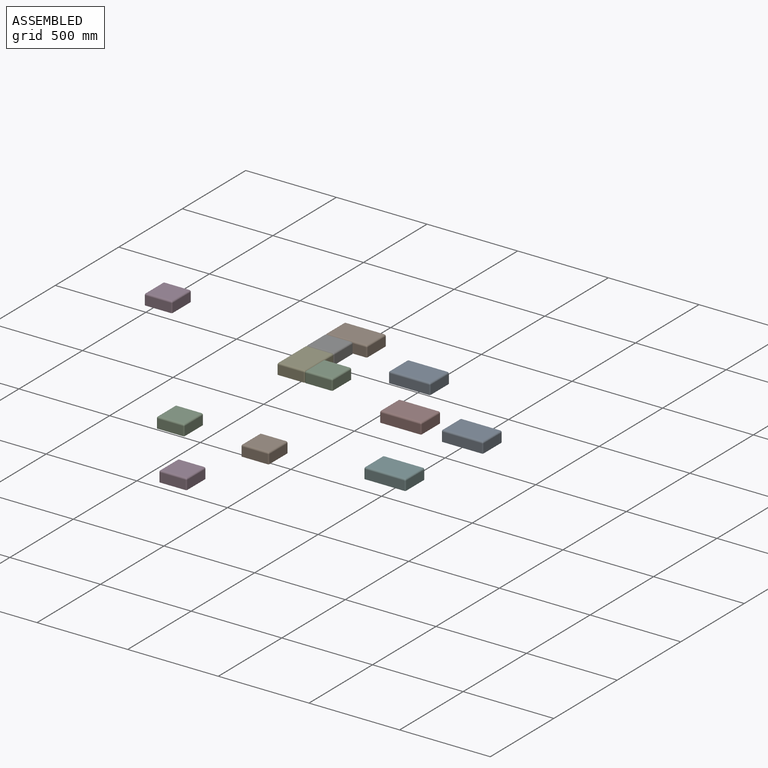
[diagram: assembled view]
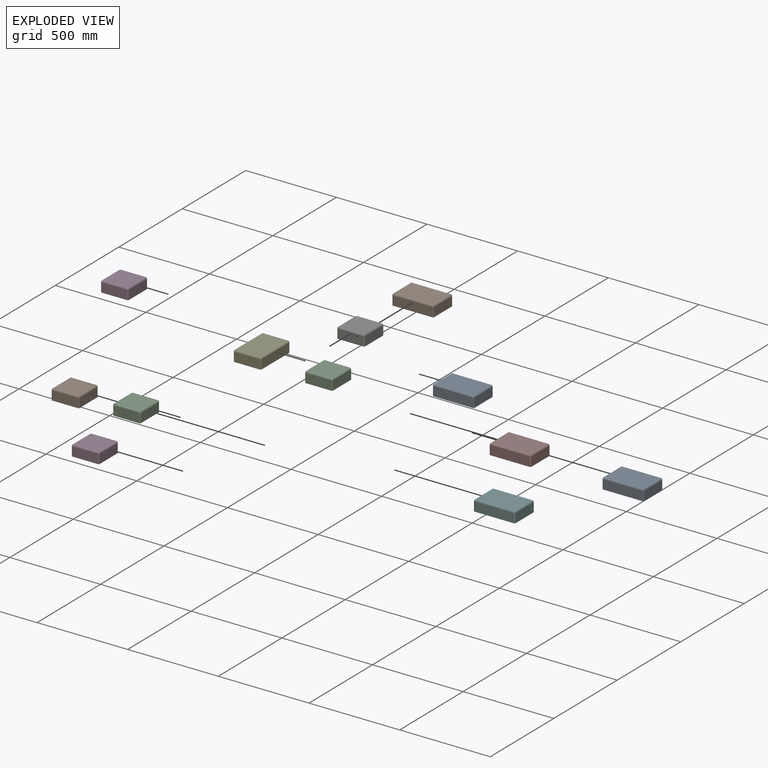
[diagram: exploded view]
GUIDED TOUR — MATED ASSEMBLY (Onshape document 7870813e908067b04411281b, AutoMate assembly 7870813e908067b04411281b_c33d60b8d94f83a59a60d879_aa1d32ee274c47b3429cdb9a_default)

This assembly has 12 components, labeled P0..P11 below (a component is one placed occurrence of a part; the same part can appear more than once), held together by 3 mates. A mate is a constraint between two components; its type names the relative motion it leaves free:
  FASTENED — locks the two components together rigidly (no relative motion).
Axis/direction vectors are unit vectors and 'through' points are millimeter coordinates, both in the assembly's world frame.

MATES
  1. FASTENED "Fastened 4": P1 <-> P6, direction (0.000, -1.000, 0.000) through (-69.85, 381.00, 0.00) mm
  2. FASTENED "Fastened 3": P10 <-> P4, direction (-1.000, 0.000, 0.000) through (76.20, 6.35, 0.00) mm
  3. FASTENED "Fastened 2": P6 <-> P4, direction (0.000, -1.000, 0.000) through (0.00, 228.60, 0.00) mm

ASSEMBLY ORDER
  1. P10 — the base component [order verified]
  2. P4 [order verified]
  3. P6 [order verified]
  4. P8 [order verified]
  5. P7 [order verified]
  6. P9 [order verified]
  7. P5 [order verified]
  8. P2 [order verified]
  9. P11 [order verified]
  10. P1 [order verified]
  11. P3 [order verified]
  12. P0 [order verified]
Order-tag legend:
  [order verified] — this step's position reverses a verified removal order: the component was checked to insert without passing through the ones already placed.

Of the 12 components, 12 carry the full construction recipe — the FeatureScript program that regenerates the part's solid from scratch; the rest are supplied as boundary geometry only.
Each toured component is shown spotlighted twice — in the assembled view, then in the exploded view, where a leader line traces a displaced component back to its assembled socket (saturated green if recipe-attached, orange if geometry-only; every other component desaturated gray) — followed by its recipe or geometry summary and the mates that hold it.
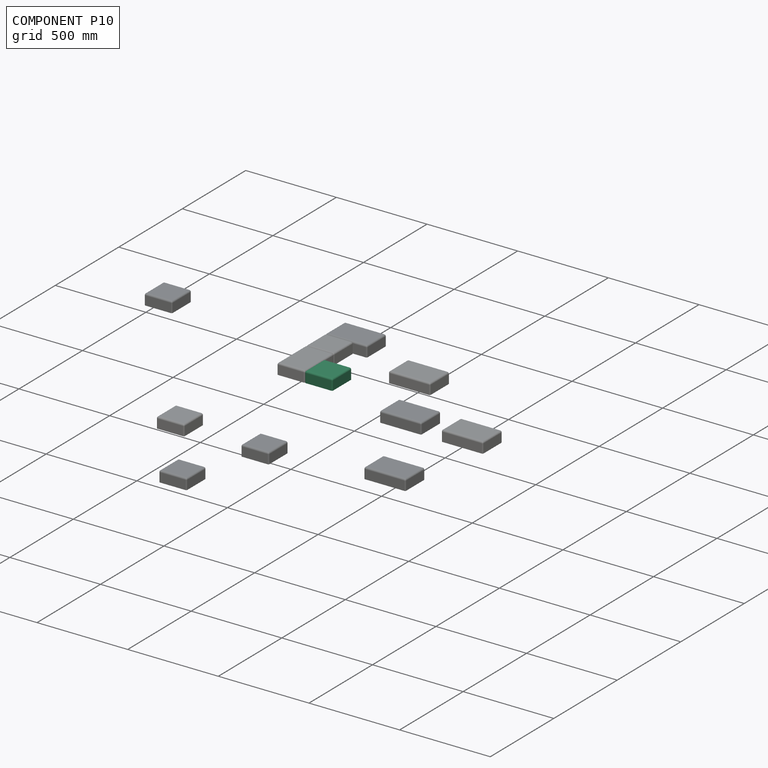
[diagram: component P10 — assembled]
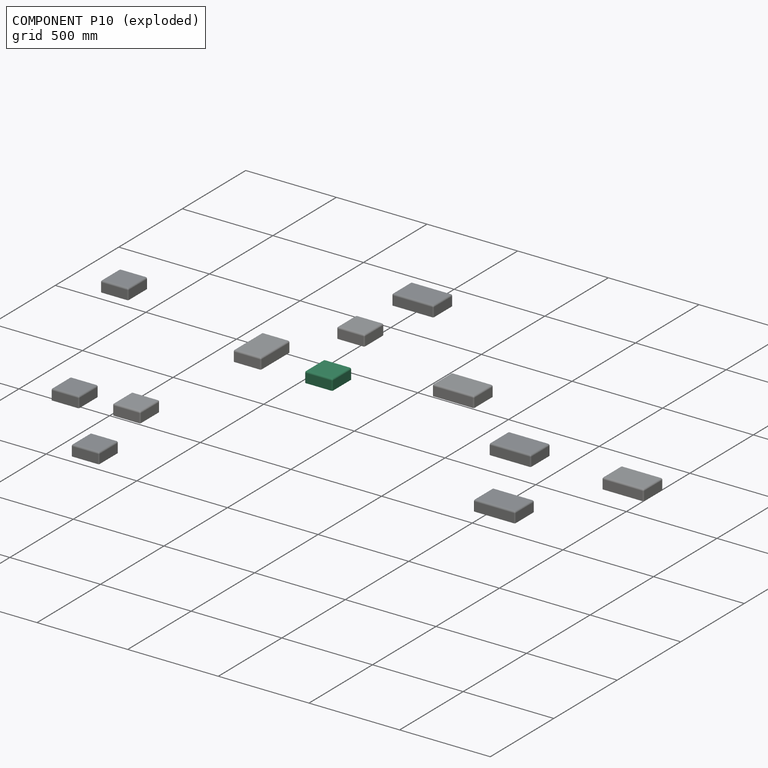
[diagram: component P10 — exploded]
COMPONENT P10 — same part as P2 (CADFS 00304210); its construction recipe is shown at P2.
Held by: FASTENED mate "Fastened 3" to P4.
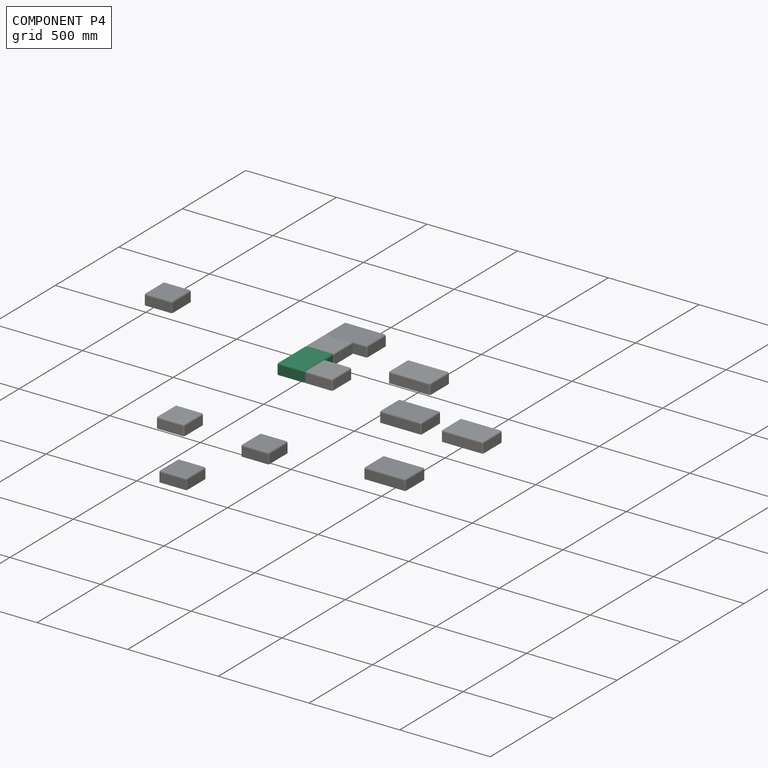
[diagram: component P4 — assembled]
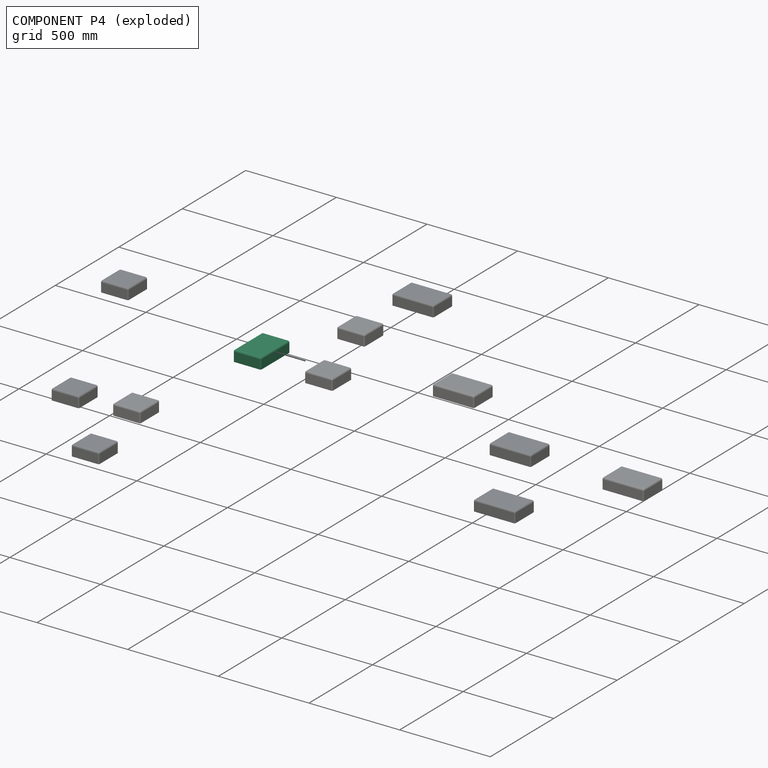
[diagram: component P4 — exploded]
COMPONENT P4 — same part as P0 (CADFS 00304209); its construction recipe is shown at P0.
Held by: FASTENED mate "Fastened 3" to P10; FASTENED mate "Fastened 2" to P6.
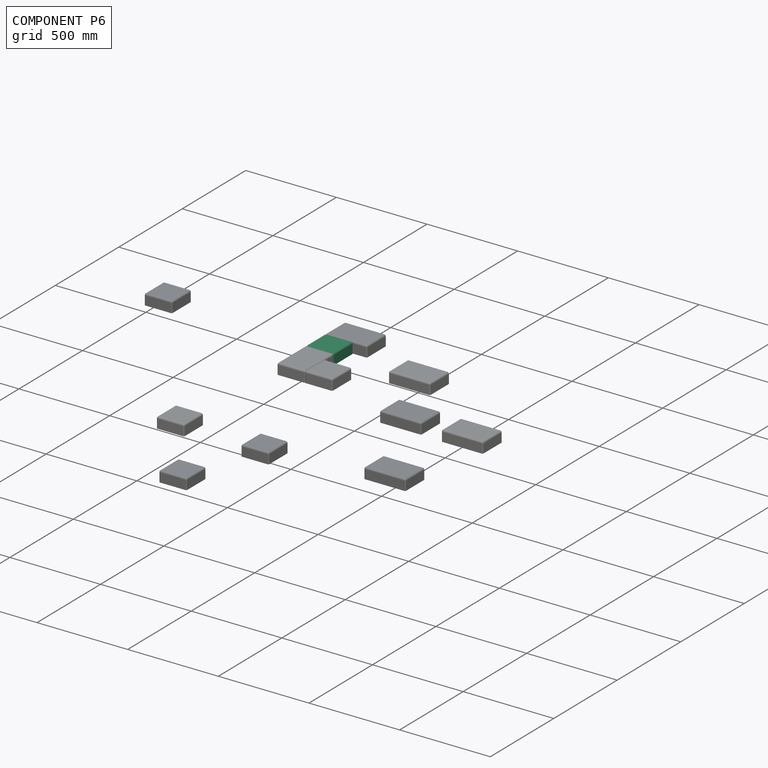
[diagram: component P6 — assembled]
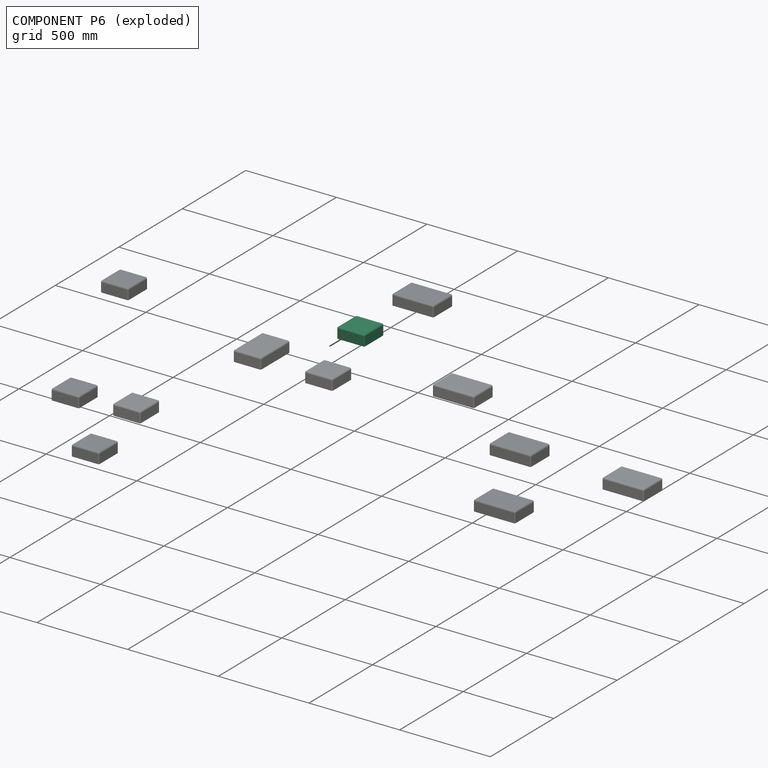
[diagram: component P6 — exploded]
COMPONENT P6 — same part as P2 (CADFS 00304210); its construction recipe is shown at P2.
Held by: FASTENED mate "Fastened 4" to P1; FASTENED mate "Fastened 2" to P4.
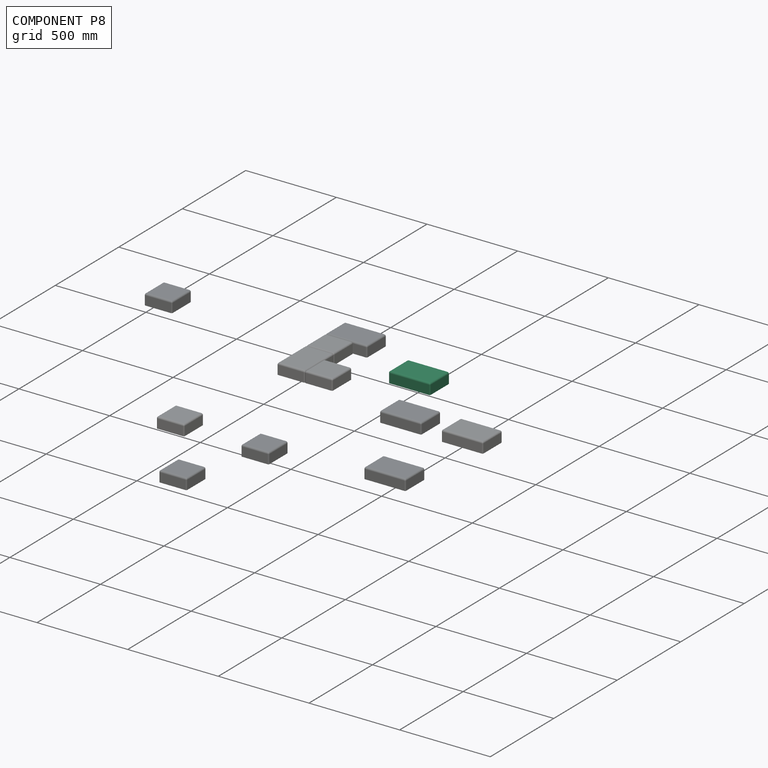
[diagram: component P8 — assembled]
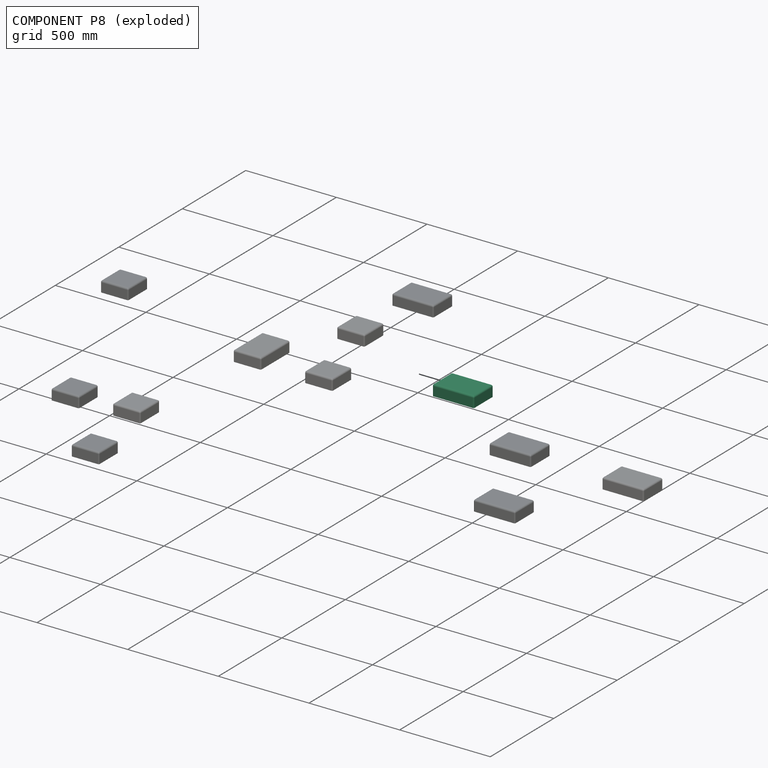
[diagram: component P8 — exploded]
COMPONENT P8 — same part as P0 (CADFS 00304209); its construction recipe is shown at P0.
Held by: no mates (free).
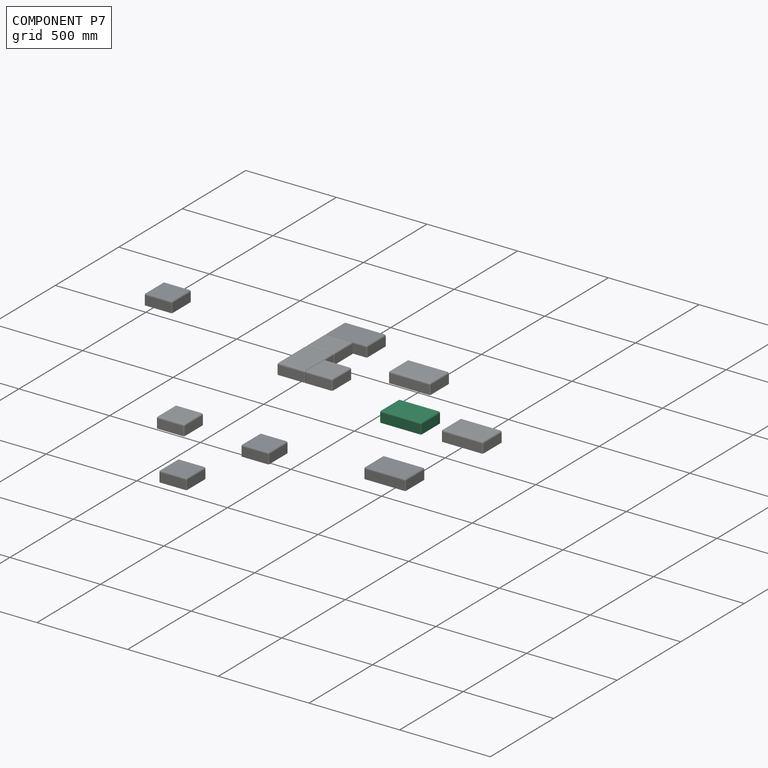
[diagram: component P7 — assembled]
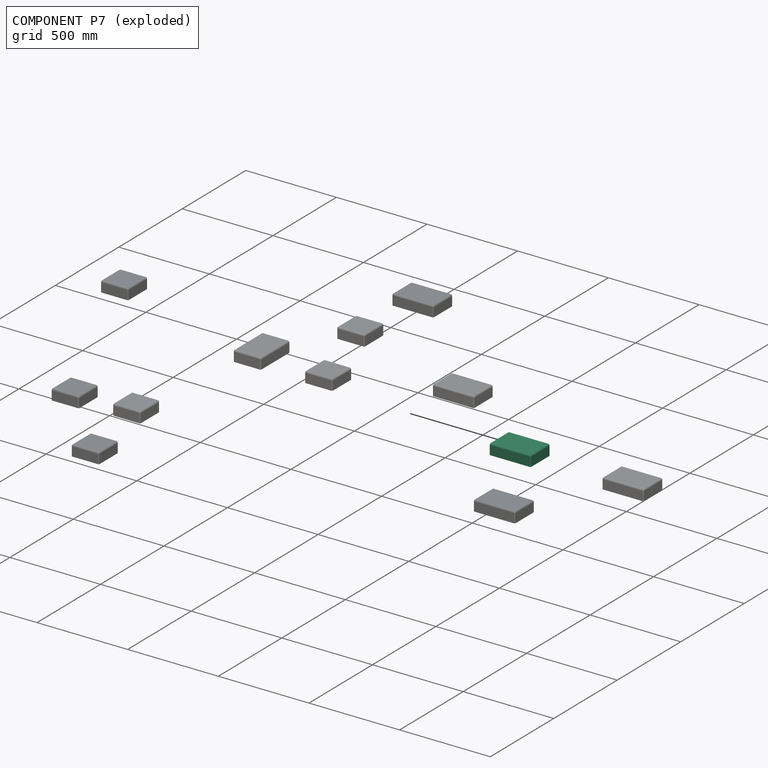
[diagram: component P7 — exploded]
COMPONENT P7 — same part as P0 (CADFS 00304209); its construction recipe is shown at P0.
Held by: no mates (free).
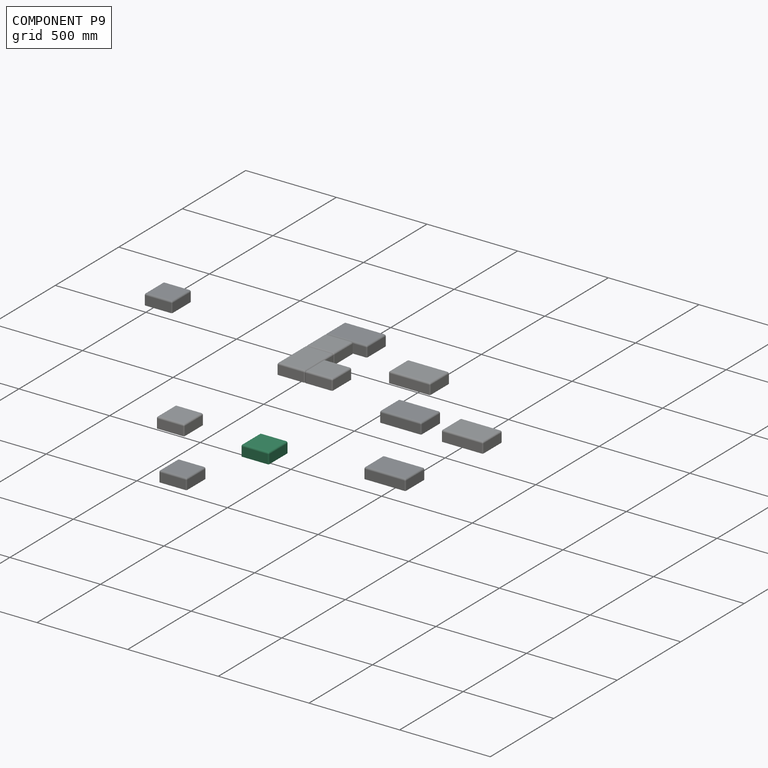
[diagram: component P9 — assembled]
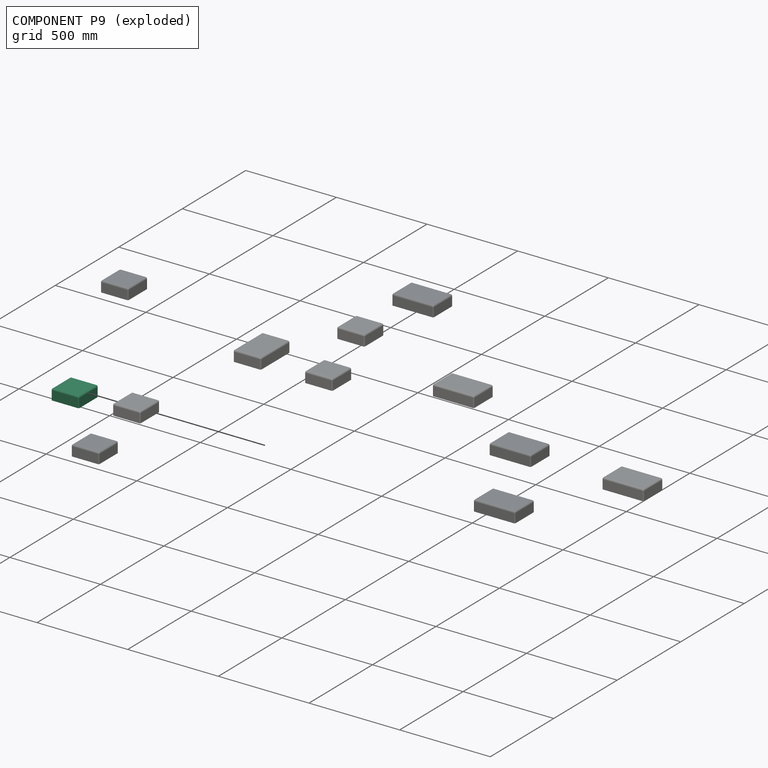
[diagram: component P9 — exploded]
COMPONENT P9 — same part as P2 (CADFS 00304210); its construction recipe is shown at P2.
Held by: no mates (free).
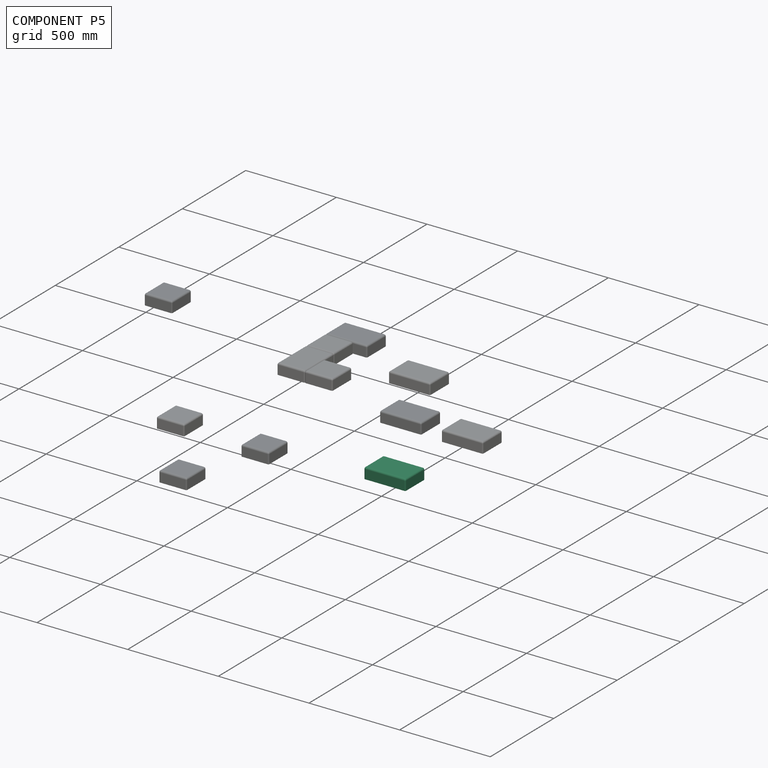
[diagram: component P5 — assembled]
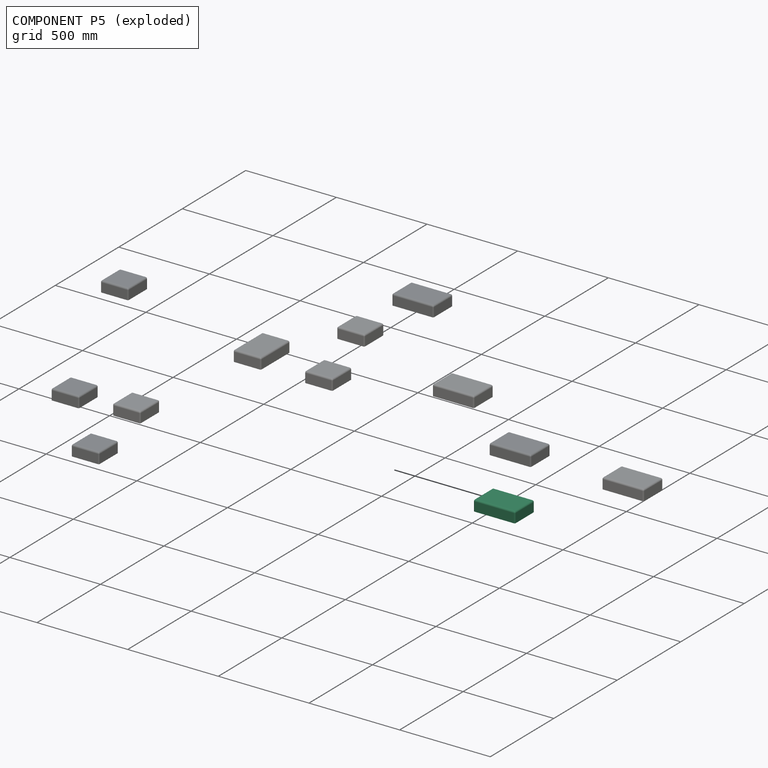
[diagram: component P5 — exploded]
COMPONENT P5 — same part as P0 (CADFS 00304209); its construction recipe is shown at P0.
Held by: no mates (free).
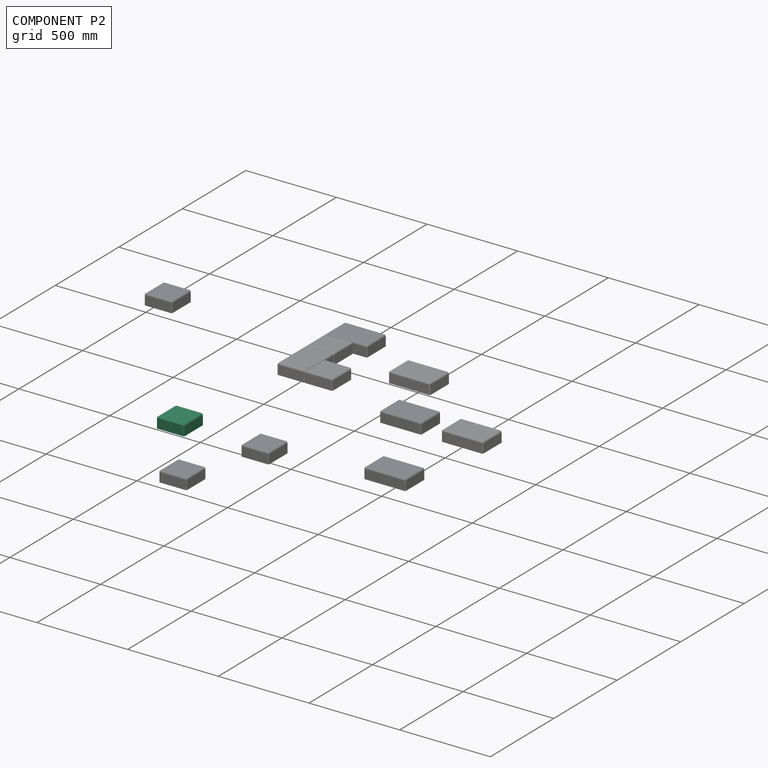
[diagram: component P2 — assembled]
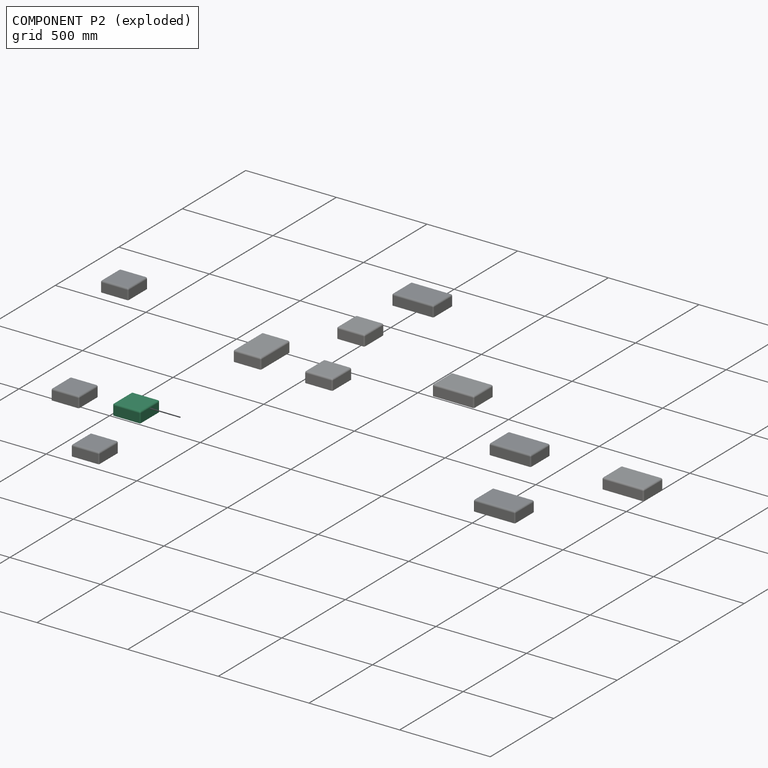
[diagram: component P2 — exploded]
COMPONENT P2 — recipe-attached (CADFS 00304210, mesh-verified: the recipe's output STEP matches this component's geometry to below the mesh-comparison resolution (tessellation chordal tolerance ~0.336 mm)).
Held by: no mates (free).
Construction recipe (FeatureScript — the CAD program that rebuilds this solid; sketch coordinates are in the units given by the * unit suffixes, e.g. mm):

FeatureScript 1540;
import(path : "onshape/std/geometry.fs", version : "1540.0");
import(path : "onshape/std/common.fs", version : "1540.0");
const mm = millimeter;
const VERTEX = EntityType.VERTEX;
const EDGE = EntityType.EDGE;
const FACE = EntityType.FACE;
const BODY = EntityType.BODY;
function v(x, y){return vector(x, y);}
function OD(order){return orderDisambiguation(order);}
function OSD(set){return originalSetDisambiguation(set);}
function TD(topology){return topologyDisambiguation(topology);}
function TDD(query){return trueDependencyDisambiguation(query);}
function sQuery(a, b, c) {return sketchEntityQuery(a, b, c);}

annotation { "Feature Type Name" : "Feature", "Feature Type Description" : "" }
export const myFeature = defineFeature(function(context is Context, id is Id, definition is map)
    precondition{}
    {
        {
            var Q0;
            Q0=qCreatedBy(makeId("Top.planeOp"),FACE);
            var sketch = newSketch(context, id + "F0", { "sketchPlane" : qUnion([Q0])});
            skLineSegment(sketch, "E0.bottom", {"start": v(6.35, 0) * mm, "end": v(146.05, 0) * mm});
            skLineSegment(sketch, "E0.top", {"start": v(6.35, 152.4) * mm, "end": v(146.05, 152.4) * mm});
            skLineSegment(sketch, "E0.left", {"start": v(0, 6.35) * mm, "end": v(0, 146.05) * mm});
            skLineSegment(sketch, "E0.right", {"start": v(152.4, 6.35) * mm, "end": v(152.4, 146.05) * mm});
            skPoint(sketch, "E1.visualSharp", {"position": v(0, 152.4) * mm});
            skArc(sketch, "E1.filletArc", {"start": v(6.35, 152.4) * mm, "mid": v(1.86, 150.54) * mm, "end": v(0, 146.05) * mm});
            skPoint(sketch, "E2.visualSharp", {"position": v(152.4, 152.4) * mm});
            skArc(sketch, "E2.filletArc", {"start": v(152.4, 146.05) * mm, "mid": v(150.54, 150.54) * mm, "end": v(146.05, 152.4) * mm});
            skPoint(sketch, "E3.visualSharp", {"position": v(152.4, 0) * mm});
            skArc(sketch, "E3.filletArc", {"start": v(146.05, 0) * mm, "mid": v(150.54, 1.86) * mm, "end": v(152.4, 6.35) * mm});
            skPoint(sketch, "E4.visualSharp", {"position": v(0, 0) * mm});
            skArc(sketch, "E4.filletArc", {"start": v(0, 6.35) * mm, "mid": v(1.86, 1.86) * mm, "end": v(6.35, 0) * mm});
            skSolve(sketch);
        }
        {
            var Q0;
            Q0=makeQuery(id+"F0.imprint","IMPRINT",FACE,{"disambiguationData":[TD([[makeQuery(id+"F0.imprint","IMPRINT",EDGE,{"derivedFrom":sQuery(id+"F0.wireOp",EDGE,"E0.bottom")}),1.0]])]});
            extrude(context, id + "F1", {"entities" : qUnion([Q0]), "depth" : 60 * mm});
        }
        {
            var Q0;
            Q0=makeQuery(id+"F1.opExtrude","CAP_EDGE",EDGE,{"disambiguationData":[OSD([sQuery(id+"F0.wireOp",EDGE,"E0.bottom")])],"isStart":false});
            fillet(context, id + "F2", {"entities" : qUnion([Q0]), "radius" : 9.52 * mm, "tangentPropagation" : true, "allowEdgeOverflow" : false});
        }
    });
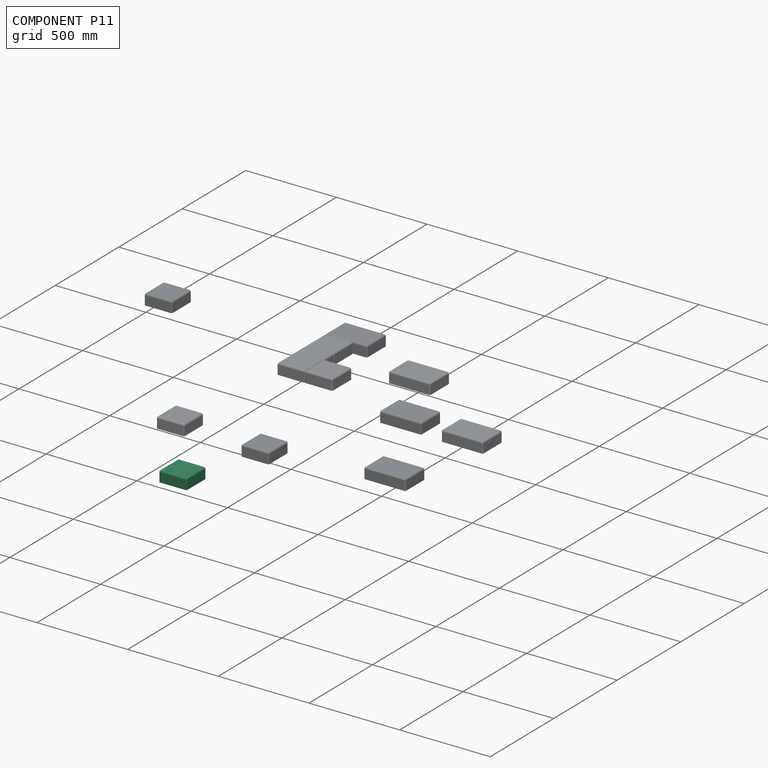
[diagram: component P11 — assembled]
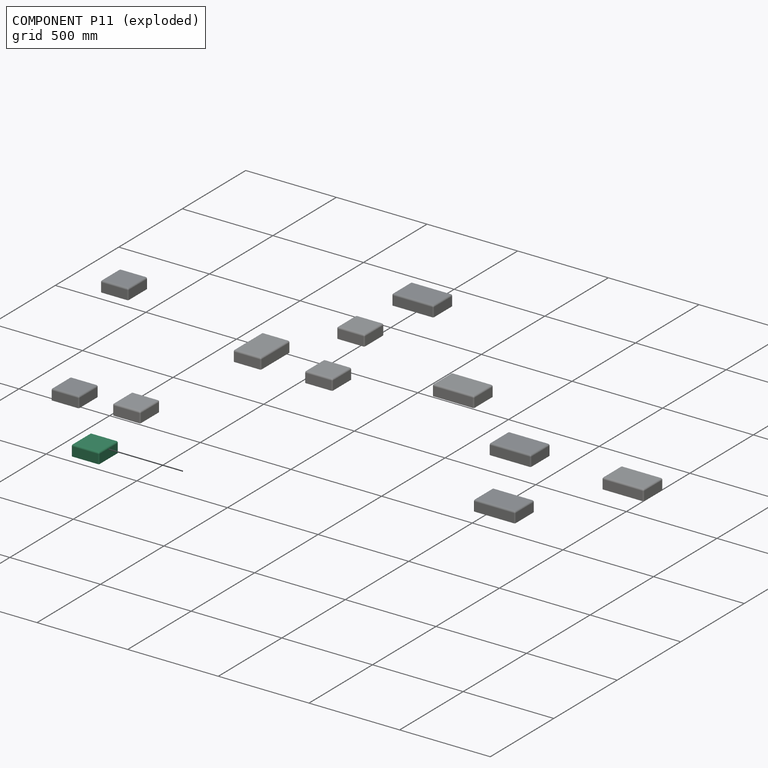
[diagram: component P11 — exploded]
COMPONENT P11 — same part as P2 (CADFS 00304210); its construction recipe is shown at P2.
Held by: no mates (free).
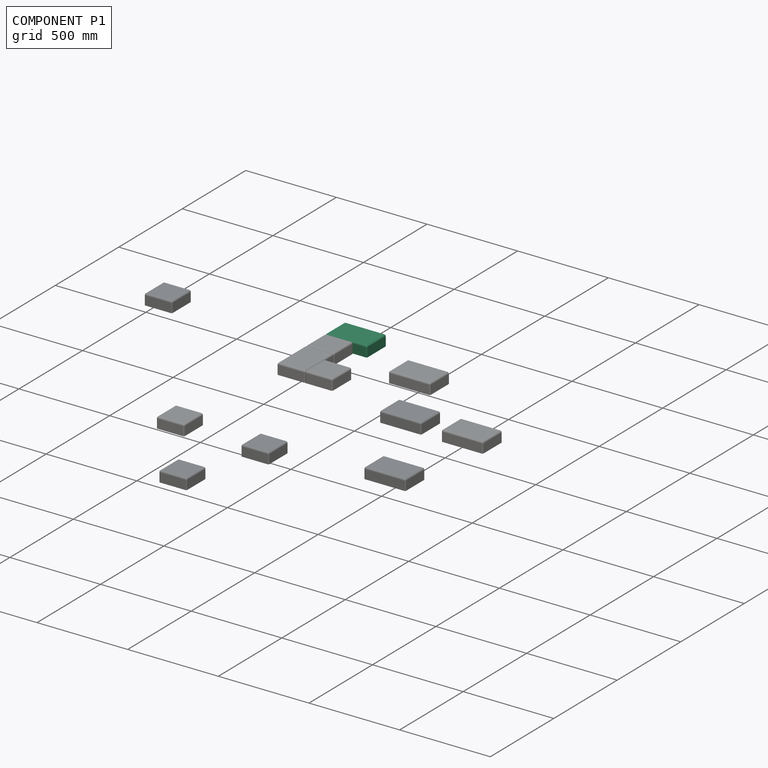
[diagram: component P1 — assembled]
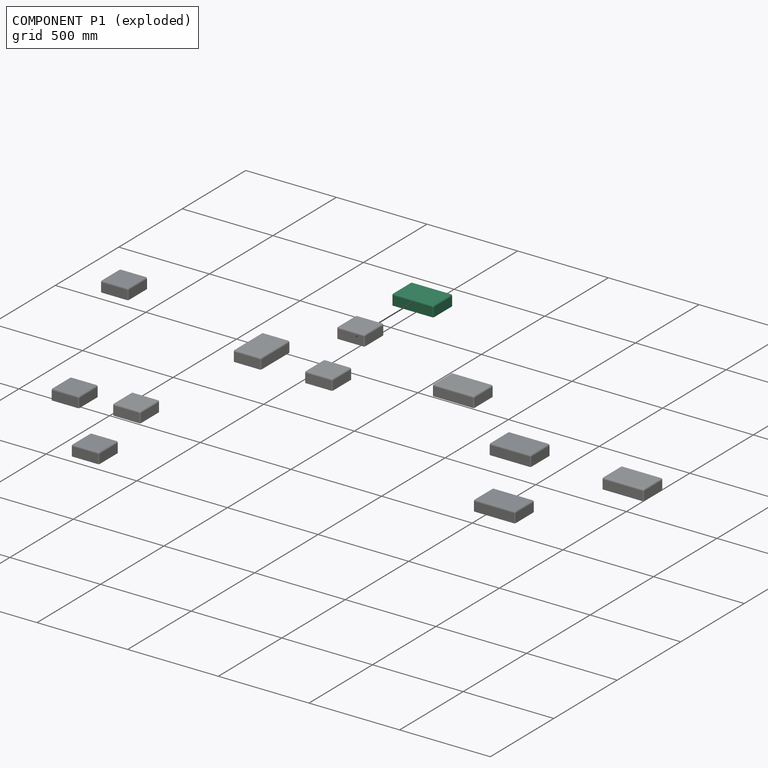
[diagram: component P1 — exploded]
COMPONENT P1 — same part as P0 (CADFS 00304209); its construction recipe is shown at P0.
Held by: FASTENED mate "Fastened 4" to P6.
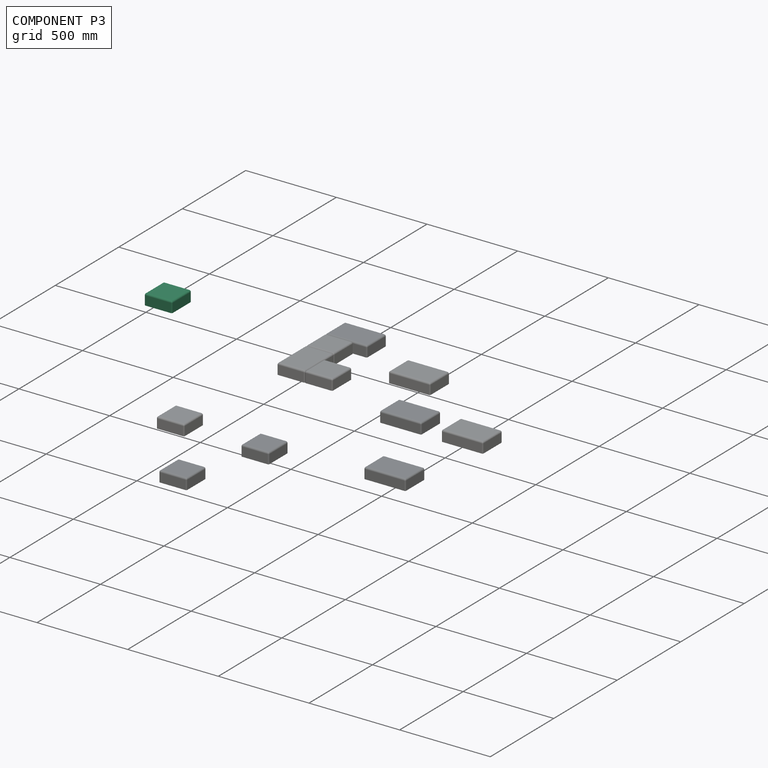
[diagram: component P3 — assembled]
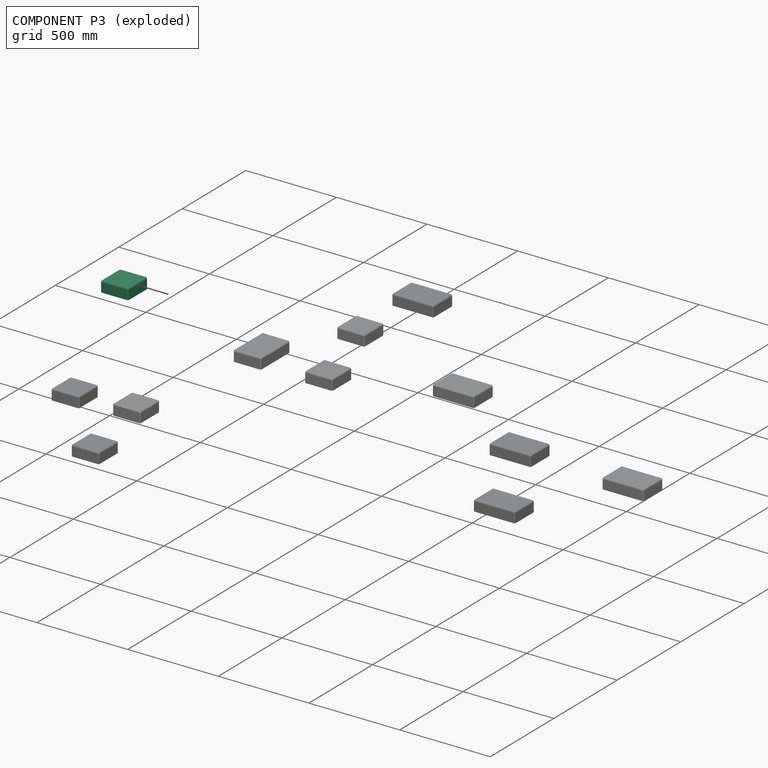
[diagram: component P3 — exploded]
COMPONENT P3 — same part as P2 (CADFS 00304210); its construction recipe is shown at P2.
Held by: no mates (free).
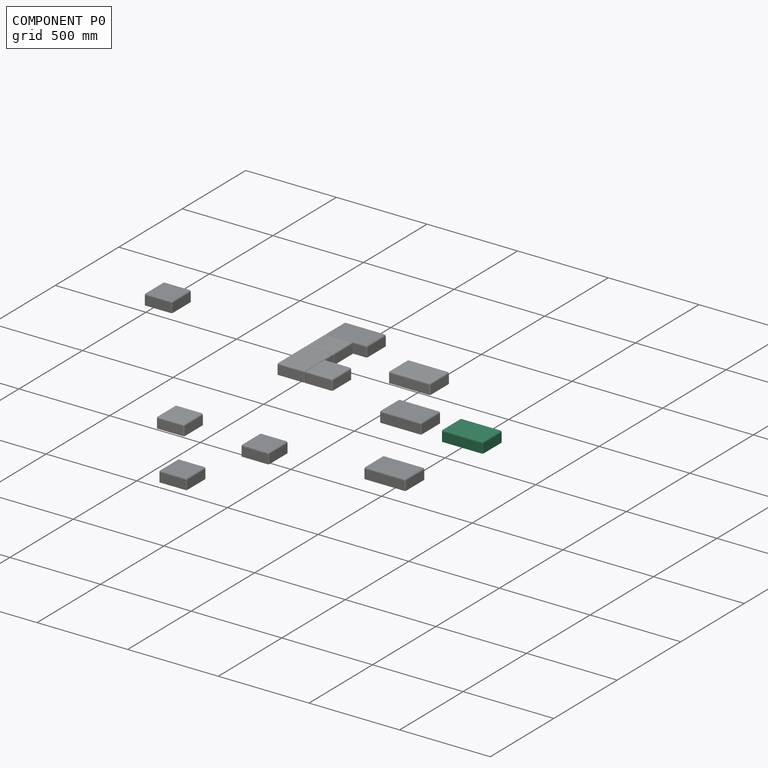
[diagram: component P0 — assembled]
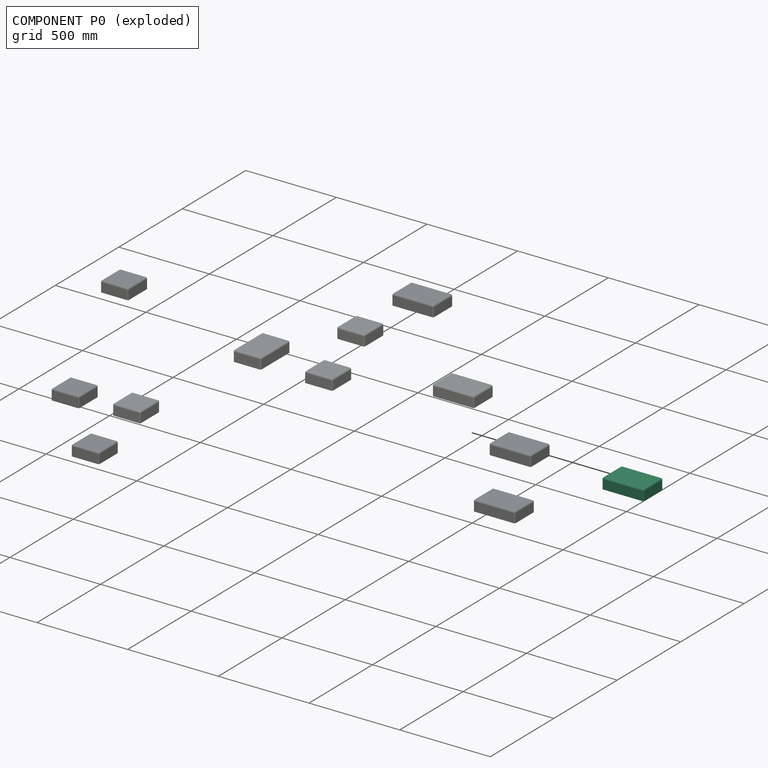
[diagram: component P0 — exploded]
COMPONENT P0 — recipe-attached (CADFS 00304209, mesh-verified: the recipe's output STEP matches this component's geometry to below the mesh-comparison resolution (tessellation chordal tolerance ~0.422 mm)).
Held by: no mates (free).
Construction recipe (FeatureScript — the CAD program that rebuilds this solid; sketch coordinates are in the units given by the * unit suffixes, e.g. mm):

FeatureScript 1540;
import(path : "onshape/std/geometry.fs", version : "1540.0");
import(path : "onshape/std/common.fs", version : "1540.0");
const mm = millimeter;
const VERTEX = EntityType.VERTEX;
const EDGE = EntityType.EDGE;
const FACE = EntityType.FACE;
const BODY = EntityType.BODY;
function v(x, y){return vector(x, y);}
function OD(order){return orderDisambiguation(order);}
function OSD(set){return originalSetDisambiguation(set);}
function TD(topology){return topologyDisambiguation(topology);}
function TDD(query){return trueDependencyDisambiguation(query);}
function sQuery(a, b, c) {return sketchEntityQuery(a, b, c);}

annotation { "Feature Type Name" : "Feature", "Feature Type Description" : "" }
export const myFeature = defineFeature(function(context is Context, id is Id, definition is map)
    precondition{}
    {
        {
            var Q0;
            Q0=qCreatedBy(makeId("Top.planeOp"),FACE);
            var sketch = newSketch(context, id + "F0", { "sketchPlane" : qUnion([Q0])});
            skLineSegment(sketch, "E0.bottom", {"start": v(6.35, 0) * mm, "end": v(222.25, 0) * mm});
            skLineSegment(sketch, "E0.top", {"start": v(6.35, 152.4) * mm, "end": v(222.25, 152.4) * mm});
            skLineSegment(sketch, "E0.left", {"start": v(0, 6.35) * mm, "end": v(0, 146.05) * mm});
            skLineSegment(sketch, "E0.right", {"start": v(228.6, 6.35) * mm, "end": v(228.6, 146.05) * mm});
            skPoint(sketch, "E1.visualSharp", {"position": v(0, 152.4) * mm});
            skArc(sketch, "E1.filletArc", {"start": v(6.35, 152.4) * mm, "mid": v(1.86, 150.54) * mm, "end": v(0, 146.05) * mm});
            skPoint(sketch, "E2.visualSharp", {"position": v(228.6, 152.4) * mm});
            skArc(sketch, "E2.filletArc", {"start": v(228.6, 146.05) * mm, "mid": v(226.74, 150.54) * mm, "end": v(222.25, 152.4) * mm});
            skPoint(sketch, "E3.visualSharp", {"position": v(228.6, 0) * mm});
            skArc(sketch, "E3.filletArc", {"start": v(222.25, 0) * mm, "mid": v(226.74, 1.86) * mm, "end": v(228.6, 6.35) * mm});
            skPoint(sketch, "E4.visualSharp", {"position": v(0, 0) * mm});
            skArc(sketch, "E4.filletArc", {"start": v(0, 6.35) * mm, "mid": v(1.86, 1.86) * mm, "end": v(6.35, 0) * mm});
            skSolve(sketch);
        }
        {
            var Q0;
            Q0=makeQuery(id+"F0.imprint","IMPRINT",FACE,{"disambiguationData":[TD([[makeQuery(id+"F0.imprint","IMPRINT",EDGE,{"derivedFrom":sQuery(id+"F0.wireOp",EDGE,"E0.bottom")}),1.0]])]});
            extrude(context, id + "F1", {"entities" : qUnion([Q0]), "depth" : 60 * mm});
        }
        {
            var Q0;
            Q0=makeQuery(id+"F1.opExtrude","CAP_EDGE",EDGE,{"disambiguationData":[OSD([sQuery(id+"F0.wireOp",EDGE,"E0.bottom")])],"isStart":false});
            fillet(context, id + "F2", {"entities" : qUnion([Q0]), "radius" : 9.52 * mm, "tangentPropagation" : true, "allowEdgeOverflow" : false});
        }
    });
PROVENANCE & LICENSES
Assembly (occurrences, transforms, mates, per-part STEP geometry): AutoMate dataset, Zenodo record 7776208, CC0.
Construction recipes: CADFS (HuggingFace VladPyatov/CADFS, CC-BY-4.0, layered over the ABC dataset), FeatureScript reconstruction programs keyed by ABC model id.
Join: ABC meta listings map ABC model id -> Onshape documentId; within a shared document, parts are matched by geometric signature (bounding-box dims + volume at 0.1% relative tolerance, exact B-rep face/solid counts).
Verification: 12 of this assembly's 12 components carry a recipe attachment, and every attachment is mesh-verified: the CADFS STEP and the AutoMate member STEP were compared as meshes in their shared local frame (symmetric sampled-point-to-mesh distance); worst across the 12 attachments: below the mesh-comparison resolution (tessellation chordal tolerance ~0.422 mm) on a 281 mm part.
Renders: orthographic iso camera (az 35 / el 25); the floor grid conveys scale (grid pitch printed in each image; no ruler). In the exploded view each component is displaced by its stored offset vector: the offsets alone carry the explosion direction (mate normal/axis signs are not orientation cues and do not encode it), and separation distances are assigned per mate-chain, not proportionally to assembly-order depth.
